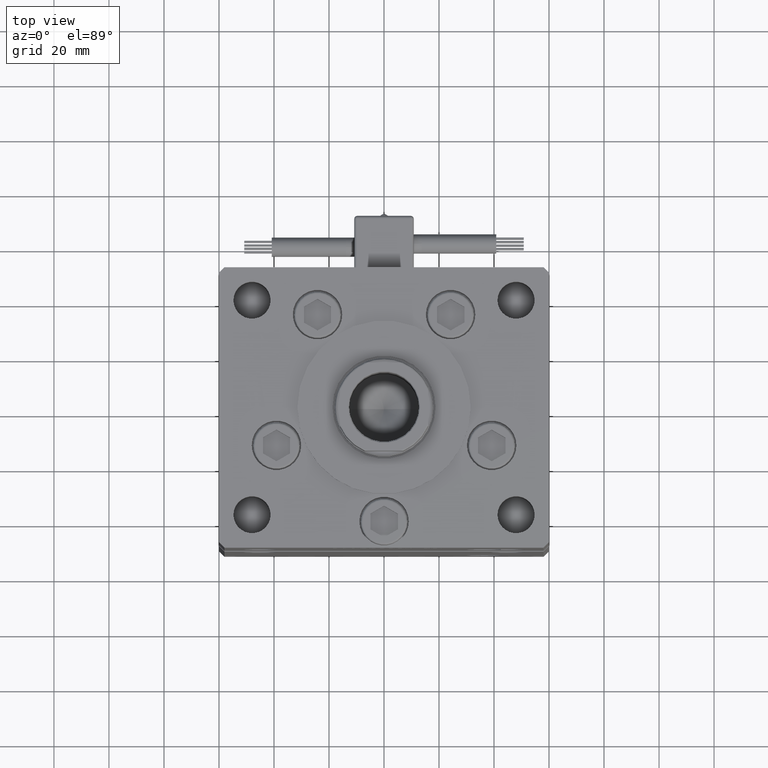
[diagram: clean part render]
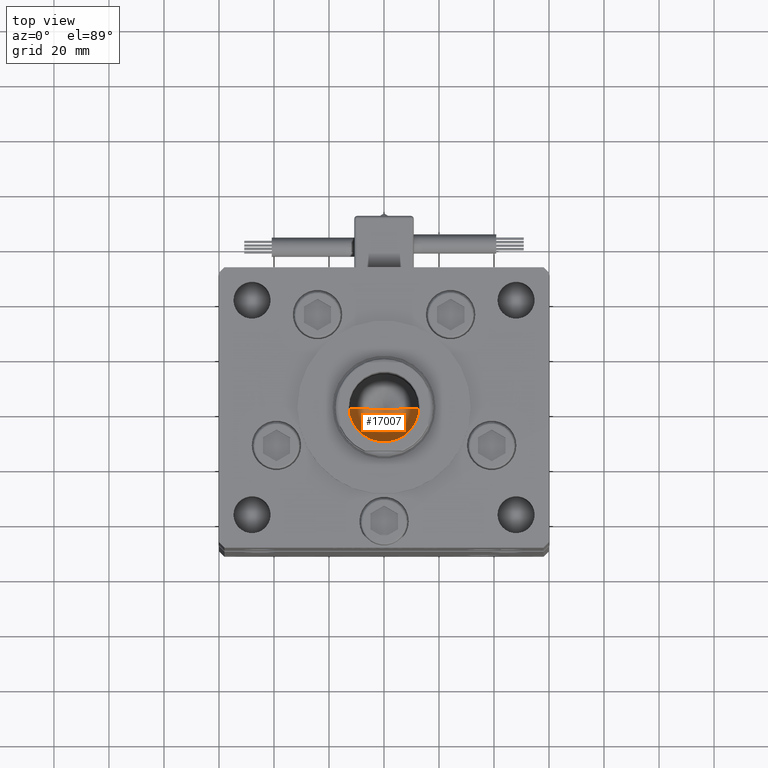
[diagram: same view with one face highlighted and labeled with its STEP entity id]
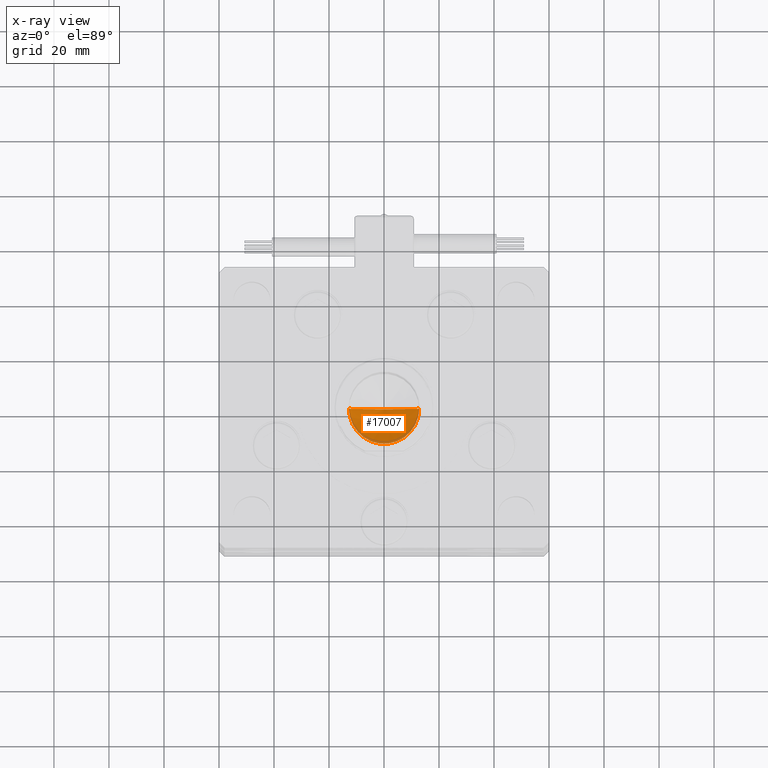
[diagram: x-ray of the same camera — body ghosted, the highlighted face saturated]
A machine part, top view. The second image highlights one B-rep face of the part: STEP entity #17007.
The next image is the same camera in x-ray: the body ghosted, the highlighted face saturated — about 8% of this face is hidden behind the body in this view.
In plain terms, the highlighted conical surface has half-angle 59 deg.
Its self-contained STEP definition (entity closure, byte-faithful):
#664 = EDGE_LOOP ( 'NONE', ( #31768, #3027, #55104 ) ) ;
#3027 = ORIENTED_EDGE ( 'NONE', *, *, #12461, .T. ) ;
#3157 = AXIS2_PLACEMENT_3D ( 'NONE', #52579, #10197, #27544 ) ;
#3533 = DIRECTION ( 'NONE',  ( 0.8571673007021117785, 0.000000000000000000, 0.5150380749100550437 ) ) ;
#3605 = VERTEX_POINT ( 'NONE', #44817 ) ;
#9922 = EDGE_CURVE ( 'NONE', #3605, #22248, #51303, .T. ) ;
#10197 = DIRECTION ( 'NONE',  ( -0.000000000000000000, -0.000000000000000000, 1.000000000000000000 ) ) ;
#10251 = CARTESIAN_POINT ( 'NONE',  ( 12.74999999999999112, 0.000000000000000000, 124.2500000000000142 ) ) ;
#12461 = EDGE_CURVE ( 'NONE', #3605, #41322, #27393, .T. ) ;
#17007 = ADVANCED_FACE ( 'NONE', ( #49158 ), #27686, .F. ) ;
#19254 = CARTESIAN_POINT ( 'NONE',  ( 0.000000000000000000, 0.000000000000000000, 124.2500000000000142 ) ) ;
#22248 = VERTEX_POINT ( 'NONE', #10251 ) ;
#22904 = VECTOR ( 'NONE', #3533, 1000.000000000000000 ) ;
#25430 = CARTESIAN_POINT ( 'NONE',  ( 12.74999999999999112, 0.000000000000000000, 124.2500000000000142 ) ) ;
#27393 = LINE ( 'NONE', #35368, #30238 ) ;
#27544 = DIRECTION ( 'NONE',  ( 1.000000000000000000, 0.000000000000000000, 0.000000000000000000 ) ) ;
#27686 = CONICAL_SURFACE ( 'NONE', #3157, 12.74999999999999112, 1.029744258676653423 ) ;
#28066 = DIRECTION ( 'NONE',  ( -0.000000000000000000, -0.000000000000000000, 1.000000000000000000 ) ) ;
#30189 = EDGE_CURVE ( 'NONE', #41322, #22248, #47033, .T. ) ;
#30238 = VECTOR ( 'NONE', #53559, 1000.000000000000000 ) ;
#31768 = ORIENTED_EDGE ( 'NONE', *, *, #9922, .F. ) ;
#35368 = CARTESIAN_POINT ( 'NONE',  ( -12.74999999999999112, 1.561424668912874125E-15, 124.2500000000000142 ) ) ;
#39786 = AXIS2_PLACEMENT_3D ( 'NONE', #19254, #28066, #41442 ) ;
#41322 = VERTEX_POINT ( 'NONE', #52429 ) ;
#41442 = DIRECTION ( 'NONE',  ( 1.000000000000000000, 0.000000000000000000, 0.000000000000000000 ) ) ;
#44817 = CARTESIAN_POINT ( 'NONE',  ( -1.307202896762960287E-14, 0.000000000000000000, 116.5890271073986213 ) ) ;
#47033 = CIRCLE ( 'NONE', #39786, 12.74999999999999112 ) ;
#49158 = FACE_OUTER_BOUND ( 'NONE', #664, .T. ) ;
#51303 = LINE ( 'NONE', #25430, #22904 ) ;
#52429 = CARTESIAN_POINT ( 'NONE',  ( -12.74999999999999112, 1.561424668912874125E-15, 124.2500000000000142 ) ) ;
#52579 = CARTESIAN_POINT ( 'NONE',  ( 0.000000000000000000, 0.000000000000000000, 124.2500000000000142 ) ) ;
#53559 = DIRECTION ( 'NONE',  ( -0.8571673007021117785, 1.049727191138617956E-16, 0.5150380749100550437 ) ) ;
#55104 = ORIENTED_EDGE ( 'NONE', *, *, #30189, .T. ) ;